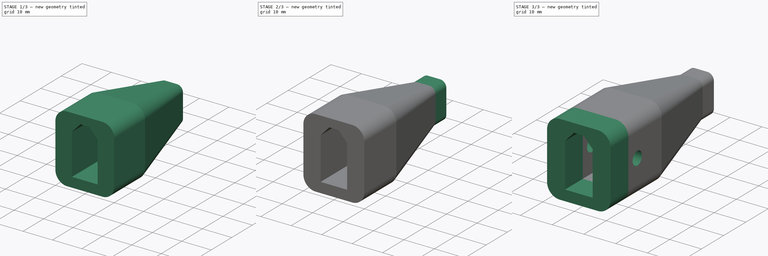
[diagram: build sequence overview — one tinted view per stage of 3, left to right]
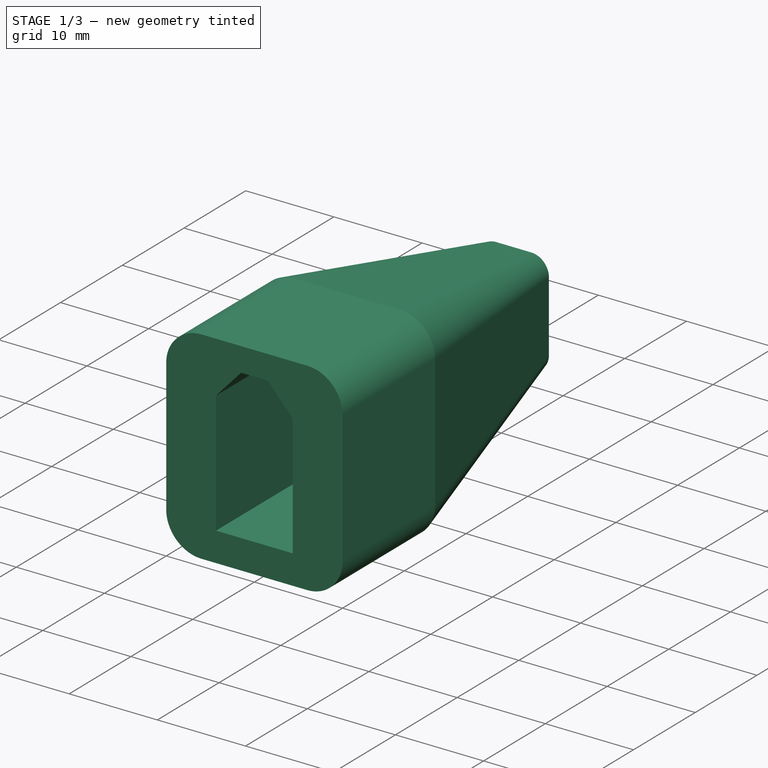
[diagram: stage 1 of 3 — iso view after this stage's code; geometry added in this stage tinted green]
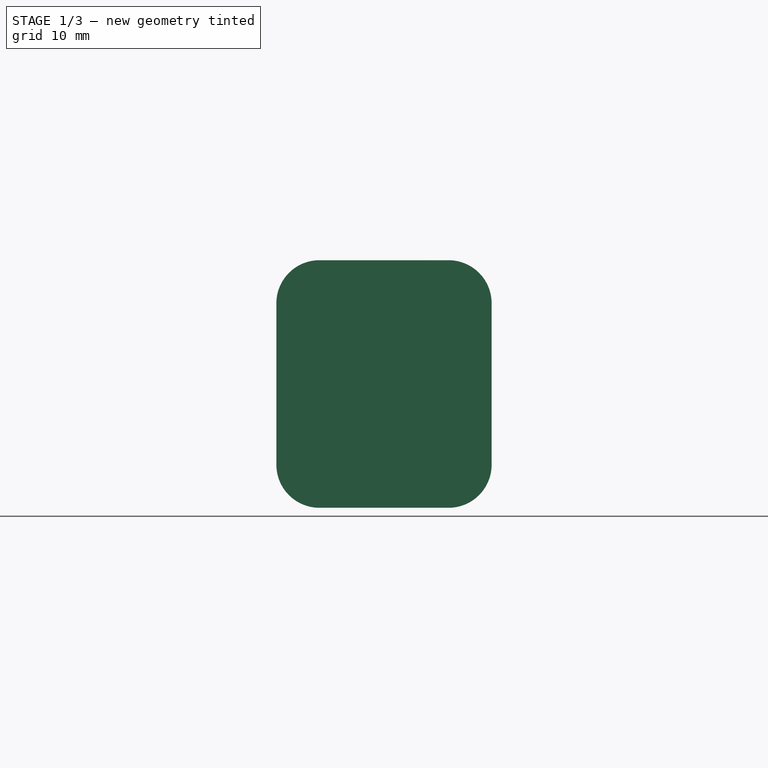
[diagram: stage 1 of 3 — front view after this stage's code; geometry added in this stage tinted green]
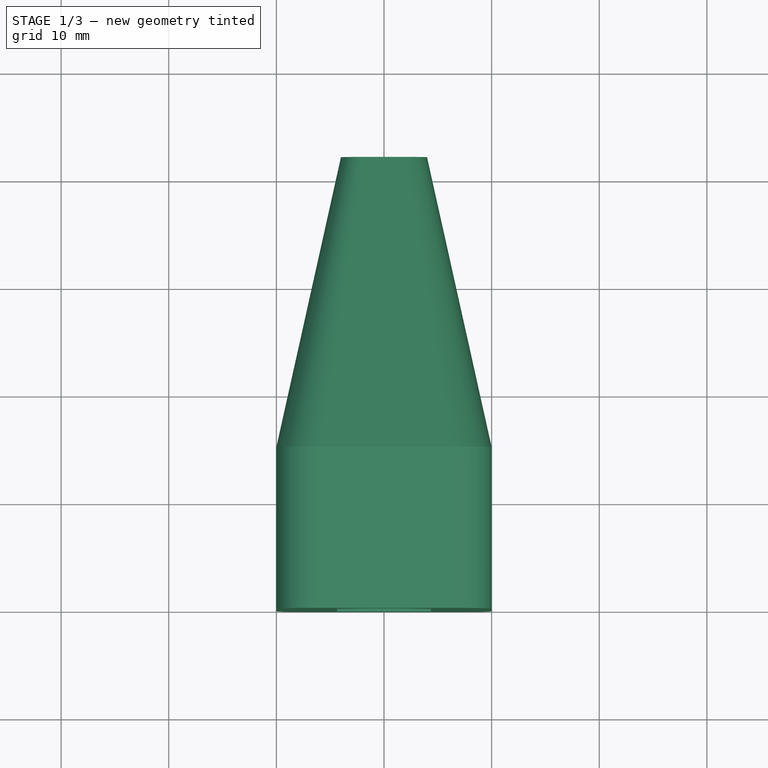
[diagram: stage 1 of 3 — top view after this stage's code; geometry added in this stage tinted green]
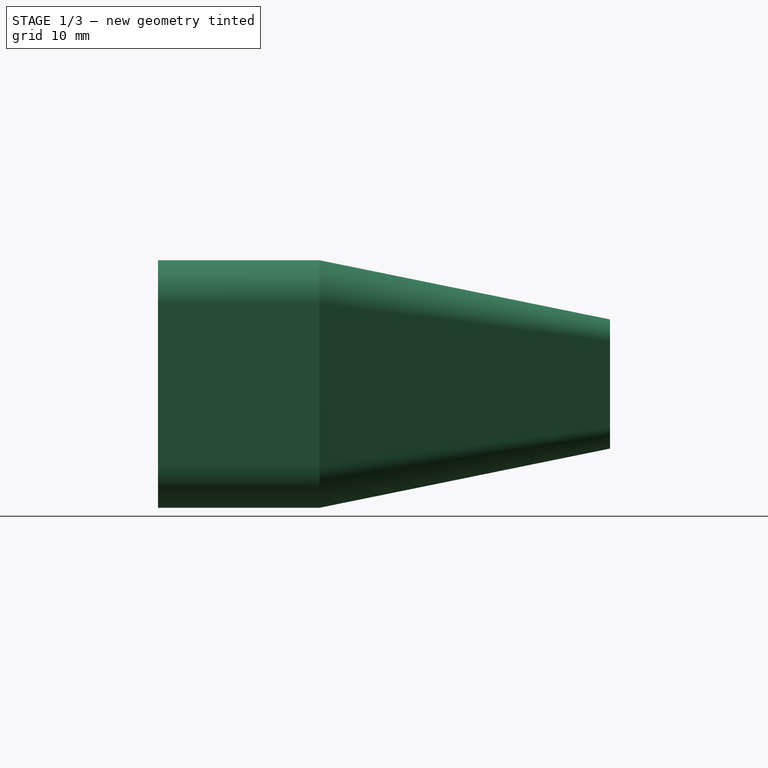
[diagram: stage 1 of 3 — right view after this stage's code; geometry added in this stage tinted green]
FCSTD DOCUMENT  (FreeCAD 0.20R29177 (Git))
Label: xt60covert008
License: All rights reserved
LicenseURL: http://en.wikipedia.org/wiki/All_rights_reserved
objects: Sketcher::SketchObject×8, PartDesign::Pad×4, Spreadsheet::Sheet×2, App::Link×2, PartDesign::Body×2, PartDesign::AdditiveLoft×1, PartDesign::Boolean×1, PartDesign::SubtractiveLoft×1, PartDesign::Pocket×1, App::TextDocument×1, App::Part×1
note: 25 computed .brp shape members not serialized (recipe doc carries the construction recipe); baked Part::Feature solids carry a one-line shape summary decoded from their .brp
EXTERNAL_REF file=../elementsCommun/xt_001.FCStd obj=Spreadsheet
EXTERNAL_REF file=xt60_insert_vis.FCStd obj=Part010
EXTERNAL_REF file=../elementsCommun/xt60Fem.FCStd obj=Part011

FEATURE [Spreadsheet::Sheet] Spreadsheet  label="coverSp"
  cells = A2=base; B2(base)=20; A3=haut; B3(haut)=23; A4=long; B4(long)=15; A5=centreY; B5(centreY)==(xtHaut + xtToitHaut) / 2; A6=coinRayon; B6(coinRayon)=4; A7=xtBase; B7(xtBase)==xt_001#<<xtSp>>.base + jeu; A8=xtHaut; B8(xtHaut)==xt_001#<<xtSp>>.haut; A9=xtToitHaut; B9(xtToitHaut)==xt_001#<<xtSp>>.toitHaut + jeu * 2; C9==B8 + B9; A10=xtFetLarg; B10(xtFetLarg)==xt_001#<<xtSp>>.fetierLarg; A11=jeu; B11(jeu)=0.3; A12=baseDistVert; B12(baseDistVert)==(haut - (xtHaut + xtToitHaut)) / 2; A13=trouFilPosY; B13(trouFilPosY)==haut / 2 - baseDistVert; A14=trousFilsEntraxe; B14(trousFilsEntraxe)=3.7; A15=trousFilsDiam; B15(trousFilsDiam)=4.2; A16=trousFilsDistBase; B16(trousFilsDistBase)=4.1; A17=extremiteLarg; B17(extremiteLarg)=8; A18=extremiteHaut; B18(extremiteHaut)=12; A19=extremiteRayon; B19(extremiteRayon)=2; A20=xtTrouDiam; B20(xtTrouDiam)=4.2; A21=xtTrouPosX; B21(xtTrouPosX)=4; A22=xtTrouPosY; B22(xtTrouPosY)==trouFilPosY; A23=buteeX; B23(buteeX)=7.8; C23=devient configurable male femelle; A24=buteeH; B24(buteeH)=1.5; A25=buteeEp; B25(buteeEp)=3
FEATURE [App::Link] Link  label="xtInsertVisLnk"
  LinkPlacement = pos=(13.9,300,-10.25) rot=(0,0,-1;1.5708rad)
  LinkedObject = -> <external xt60_insert_vis.FCStd>#Part010
  Placement = pos=(13.9,300,-10.25) rot=(0,0,-1;1.5708rad)
  expr: .Placement.Base.y = <<paramSp>>.malePosy
  expr: Visibility = <<paramSp>>.maleVisi
FEATURE [Sketcher::SketchObject] Sketch  label="formBaseSk"
  FullyConstrained = true
  MapMode = 5
  Placement = pos=(0,0,0) rot=(1,0,0;1.5708rad)
  Support = -> [XZ_Plane018]
  expr: Constraints[14] = <<coverSp>>.base
  expr: Constraints[15] = <<coverSp>>.coinRayon
  expr: Constraints[16] = <<coverSp>>.haut
  expr: Constraints[29] = <<paramSp>>.xtHaut
  expr: Constraints[30] = <<paramSp>>.xtBase
  expr: Constraints[31] = <<coverSp>>.xtToitHaut
  expr: Constraints[32] = xt_001#<<xtSp>>.fetierLarg
  expr: Constraints[33] = <<coverSp>>.baseDistVert
  sketch-geometry (18):
    g0: LineSegment StartX=-6 StartY=19.675 StartZ=0 EndX=6 EndY=19.675 EndZ=0
    g1: LineSegment StartX=10 StartY=15.675 StartZ=0 EndX=10 EndY=0.675 EndZ=0
    g2: LineSegment StartX=6 StartY=-3.325 StartZ=0 EndX=-6 EndY=-3.325 EndZ=0
    g3: LineSegment StartX=-10 StartY=0.675 StartZ=0 EndX=-10 EndY=15.675 EndZ=0
    g4: ArcOfCircle CenterX=-6 CenterY=15.675 CenterZ=0 NormalX=0 NormalY=0 NormalZ=1 AngleXU=0 Radius=4 StartAngle=1.5708 EndAngle=3.14159
    g5: ArcOfCircle CenterX=6 CenterY=15.675 CenterZ=0 NormalX=0 NormalY=0 NormalZ=1 AngleXU=0 Radius=4 StartAngle=0 EndAngle=1.5708
    g6: ArcOfCircle CenterX=-6 CenterY=0.675 CenterZ=0 NormalX=0 NormalY=0 NormalZ=1 AngleXU=0 Radius=4 StartAngle=3.14159 EndAngle=4.71239
    g7: ArcOfCircle CenterX=6 CenterY=0.675 CenterZ=0 NormalX=0 NormalY=0 NormalZ=1 AngleXU=0 Radius=4 StartAngle=4.71239 EndAngle=6.28319
    g8: LineSegment StartX=-4.35 StartY=0 StartZ=0 EndX=4.35 EndY=0 EndZ=0
    g9: LineSegment StartX=4.35 StartY=0 StartZ=0 EndX=4.35 EndY=13.85 EndZ=0
    g10: LineSegment StartX=4.35 StartY=13.85 StartZ=0 EndX=1.5 EndY=16.95 EndZ=0
    g11: LineSegment StartX=1.5 StartY=16.95 StartZ=0 EndX=-1.5 EndY=16.95 EndZ=0
    g12: LineSegment StartX=-1.5 StartY=16.95 StartZ=0 EndX=-4.35 EndY=13.85 EndZ=0
    g13: LineSegment StartX=-4.35 StartY=13.85 StartZ=0 EndX=-4.35 EndY=0 EndZ=0
    g14: LineSegment StartX=-6 StartY=15.675 StartZ=0 EndX=-6 EndY=0.675 EndZ=0
    g15: GeomPoint X=-6 Y=8.175 Z=0
    g16: LineSegment StartX=0 StartY=16.95 StartZ=0 EndX=0 EndY=0 EndZ=0
    g17: GeomPoint X=0 Y=8.475 Z=0
  constraints (43):
    c: Horizontal(g2)
    c: Vertical(g1)
    c: Tangent(g0,g4) = 1.5708
    c: Tangent(g3,g4) = 1.5708
    c: Tangent(g0,g5) = 1.5708
    c: Tangent(g1,g5) = 1.5708
    c: Tangent(g2,g6) = 1.5708
    c: Tangent(g3,g6) = 1.5708
    c: Tangent(g1,g7) = 1.5708
    c: Tangent(g2,g7) = 1.5708
    c: Symmetric(g0,g0,g-2)
    c: Symmetric(g1,g3,g-2)
    c: Equal(g7,g6)
    c: Equal(g5,g7)
    c: DistanceX(g3,g1) = 20
    c: Radius(g5) = 4
    c: DistanceY(g2,g0) = 23
    c: PointOnObject(g8,g-1)
    c: Horizontal(g8)
    c: Coincident(g8,g9)
    c: Vertical(g9)
    c: Coincident(g9,g10)
    c: Coincident(g10,g11)
    c: Coincident(g11,g12)
    c: Coincident(g12,g13)
    c: Coincident(g13,g8)
    c: Vertical(g13)
    c: Symmetric(g11,g10,g-2)
    c: Symmetric(g12,g9,g-2)
    c: DistanceY(g8,g9) = 13.85
    c: DistanceX(g8,g8) = 8.7
    c: DistanceY(g9,g10) = 3.1
    c: DistanceX(g11,g10) = 3
    c: DistanceY(g2,g-1) = 3.325
    c: Coincident(g14,g4)
    c: Coincident(g14,g6)
    c: Symmetric(g6,g4,g15)
    c: DistanceY(g-1,g15) = 8.175
    c: PointOnObject(g16,g11)
    c: Coincident(g16,g-1)
    c: Vertical(g16)
    c: Symmetric(g16,g16,g17)
    c: DistanceY(g16,g17) = 8.475
FEATURE [PartDesign::Pad] Pad  label="formeDeBase"
  Direction = (0,-1,-2e-16)
  Length = 15
  Length2 = 100
  Placement = pos=(0,0,0) rot=(1,0,0;1.5708rad)
  Profile = -> Sketch
  Reversed = true
  Type = 0
FEATURE [Sketcher::SketchObject] Sketch002  label="profileDeBaseSk"
  AttachmentOffset = pos=(0,0,-15) rot=(0,0,1;0rad)
  FullyConstrained = true
  MapMode = 5
  Placement = pos=(0,15,3.3e-15) rot=(1,0,0;1.5708rad)
  Support = -> [XZ_Plane019]
  expr: Constraints[15] = <<coverSp>>.coinRayon
  expr: Constraints[16] = <<coverSp>>.base
  expr: Constraints[17] = <<coverSp>>.haut
  expr: Constraints[18] = <<coverSp>>.baseDistVert
  sketch-geometry (8):
    g0: LineSegment StartX=-6 StartY=19.675 StartZ=0 EndX=6 EndY=19.675 EndZ=0
    g1: LineSegment StartX=10 StartY=15.675 StartZ=0 EndX=10 EndY=0.675 EndZ=0
    g2: LineSegment StartX=6 StartY=-3.325 StartZ=0 EndX=-6 EndY=-3.325 EndZ=0
    g3: LineSegment StartX=-10 StartY=0.675 StartZ=0 EndX=-10 EndY=15.675 EndZ=0
    g4: ArcOfCircle CenterX=-6 CenterY=15.675 CenterZ=0 NormalX=0 NormalY=0 NormalZ=1 AngleXU=0 Radius=4 StartAngle=1.5708 EndAngle=3.14159
    g5: ArcOfCircle CenterX=6 CenterY=15.675 CenterZ=0 NormalX=0 NormalY=0 NormalZ=1 AngleXU=0 Radius=4 StartAngle=-2.7e-15 EndAngle=1.5708
    g6: ArcOfCircle CenterX=6 CenterY=0.675 CenterZ=0 NormalX=0 NormalY=0 NormalZ=1 AngleXU=0 Radius=4 StartAngle=4.71239 EndAngle=6.28319
    g7: ArcOfCircle CenterX=-6 CenterY=0.675 CenterZ=0 NormalX=0 NormalY=0 NormalZ=1 AngleXU=0 Radius=4 StartAngle=3.14159 EndAngle=4.71239
  constraints (19):
    c: Horizontal(g2)
    c: Vertical(g1)
    c: Vertical(g3)
    c: Tangent(g0,g4) = 1.5708
    c: Tangent(g3,g4) = 1.5708
    c: Tangent(g0,g5) = 1.5708
    c: Tangent(g1,g5) = 1.5708
    c: Tangent(g1,g6) = 1.5708
    c: Tangent(g2,g6) = 1.5708
    c: Tangent(g2,g7) = 1.5708
    c: Tangent(g3,g7) = 1.5708
    c: Equal(g6,g5)
    c: Equal(g5,g4)
    c: Equal(g4,g7)
    c: Symmetric(g0,g0,g-2)
    c: Radius(g5) = 4
    c: DistanceX(g3,g1) = 20
    c: DistanceY(g2,g0) = 23
    c: DistanceY(g2,g-1) = 3.325
FEATURE [Sketcher::SketchObject] Sketch003  label="profileExtremiteSk"
  AttachmentOffset = pos=(0,0,-42) rot=(0,0,1;0rad)
  FullyConstrained = true
  MapMode = 5
  Placement = pos=(0,42,9.3e-15) rot=(1,0,0;1.5708rad)
  Support = -> [XZ_Plane019]
  expr: Constraints[14] = <<coverSp>>.extremiteRayon
  expr: Constraints[15] = <<coverSp>>.extremiteLarg
  expr: Constraints[16] = <<coverSp>>.extremiteHaut
  expr: Constraints[21] = <<coverSp>>.centreY
  sketch-geometry (10):
    g0: LineSegment StartX=-2 StartY=14.175 StartZ=0 EndX=2 EndY=14.175 EndZ=0
    g1: LineSegment StartX=4 StartY=12.175 StartZ=0 EndX=4 EndY=4.175 EndZ=0
    g2: LineSegment StartX=2 StartY=2.175 StartZ=0 EndX=-2 EndY=2.175 EndZ=0
    g3: LineSegment StartX=-4 StartY=4.175 StartZ=0 EndX=-4 EndY=12.175 EndZ=0
    g4: ArcOfCircle CenterX=-2 CenterY=12.175 CenterZ=0 NormalX=0 NormalY=0 NormalZ=1 AngleXU=0 Radius=2 StartAngle=1.5708 EndAngle=3.14159
    g5: ArcOfCircle CenterX=2 CenterY=12.175 CenterZ=0 NormalX=0 NormalY=0 NormalZ=1 AngleXU=0 Radius=2 StartAngle=0 EndAngle=1.5708
    g6: ArcOfCircle CenterX=2 CenterY=4.175 CenterZ=0 NormalX=0 NormalY=0 NormalZ=1 AngleXU=0 Radius=2 StartAngle=4.71239 EndAngle=6.28319
    g7: ArcOfCircle CenterX=-2 CenterY=4.175 CenterZ=0 NormalX=0 NormalY=0 NormalZ=1 AngleXU=0 Radius=2 StartAngle=3.14159 EndAngle=4.71239
    g8: LineSegment StartX=-2 StartY=12.175 StartZ=0 EndX=-2 EndY=4.175 EndZ=0
    g9: GeomPoint X=-2 Y=8.175 Z=0
  constraints (22):
    c: Horizontal(g0)
    c: Vertical(g1)
    c: Vertical(g3)
    c: Tangent(g0,g4) = 1.5708
    c: Tangent(g3,g4) = 1.5708
    c: Tangent(g0,g5) = 1.5708
    c: Tangent(g1,g5) = 1.5708
    c: Tangent(g1,g6) = 1.5708
    c: Tangent(g2,g6) = 1.5708
    c: Tangent(g2,g7) = 1.5708
    c: Tangent(g3,g7) = 1.5708
    c: Equal(g4,g5)
    c: Equal(g5,g6)
    c: Equal(g6,g7)
    c: Radius(g5) = 2
    c: DistanceX(g3,g1) = 8
    c: DistanceY(g2,g0) = 12
    c: Symmetric(g2,g2,g-2)
    c: Coincident(g8,g4)
    c: Coincident(g8,g7)
    c: Symmetric(g7,g4,g9)
    c: DistanceY(g-1,g9) = 8.175
FEATURE [PartDesign::AdditiveLoft] AdditiveLoft  label="manchonPlein"
  Closed = false
  Placement = pos=(0,0,0) rot=(1,0,0;1.5708rad)
  Profile = -> Sketch002
  Ruled = false
  Sections = -> [Sketch003]
FEATURE [PartDesign::Body] Body001
  Group = -> [Sketch002,Sketch003,AdditiveLoft]
  Origin = -> Origin023
  Tip = -> AdditiveLoft
FEATURE [PartDesign::Boolean] Boolean  label="corpsAvecManchonPlein"
  BaseFeature = -> Pad
  Group = -> [Body001]
  Type = 0
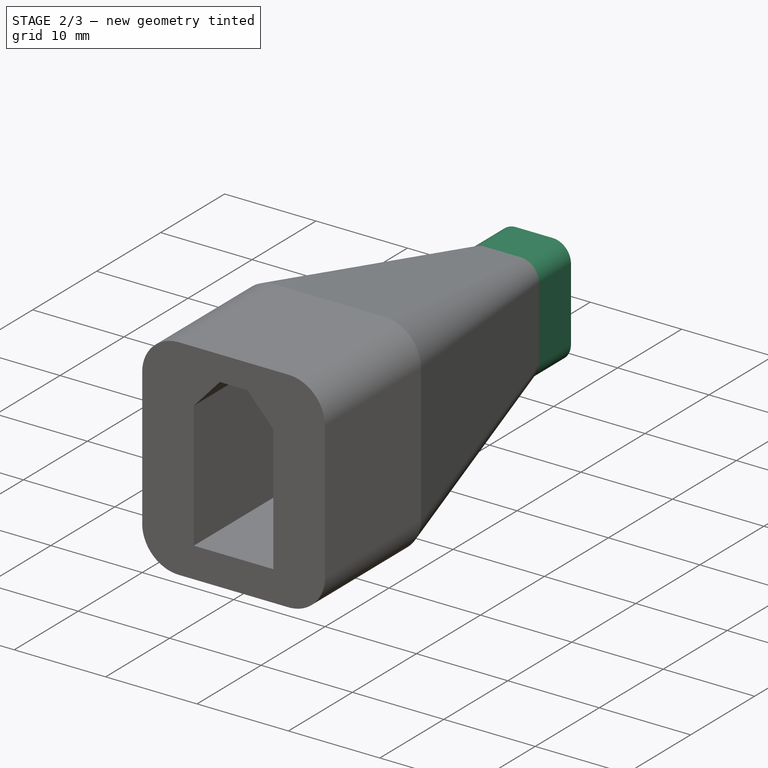
[diagram: stage 2 of 3 — iso view after this stage's code; geometry added in this stage tinted green]
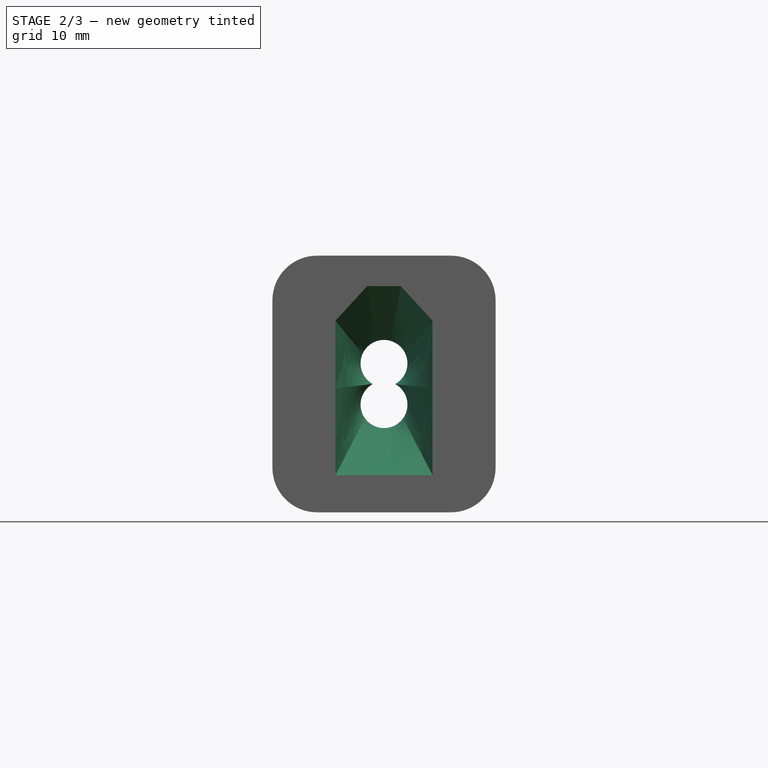
[diagram: stage 2 of 3 — front view after this stage's code; geometry added in this stage tinted green]
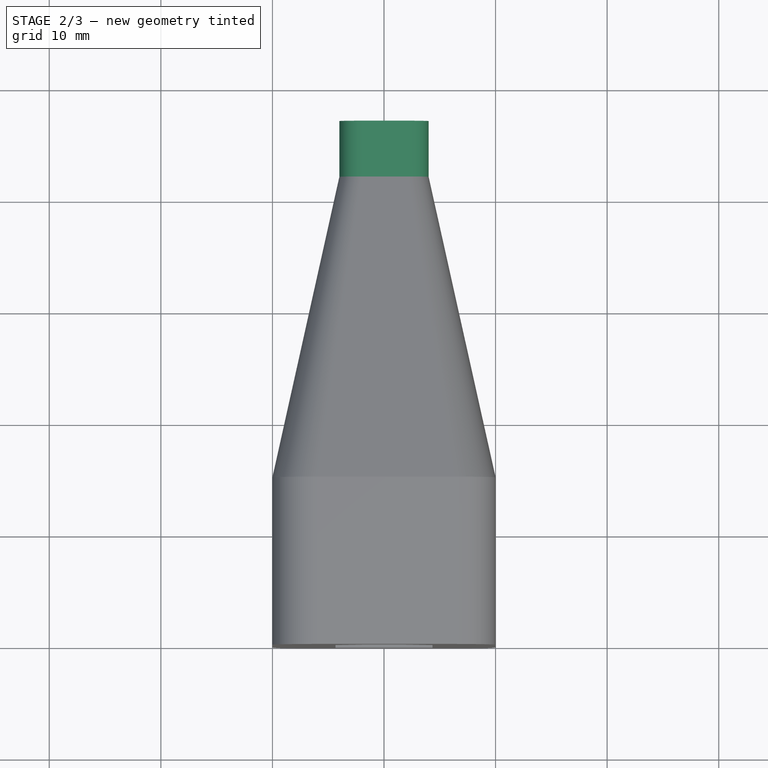
[diagram: stage 2 of 3 — top view after this stage's code; geometry added in this stage tinted green]
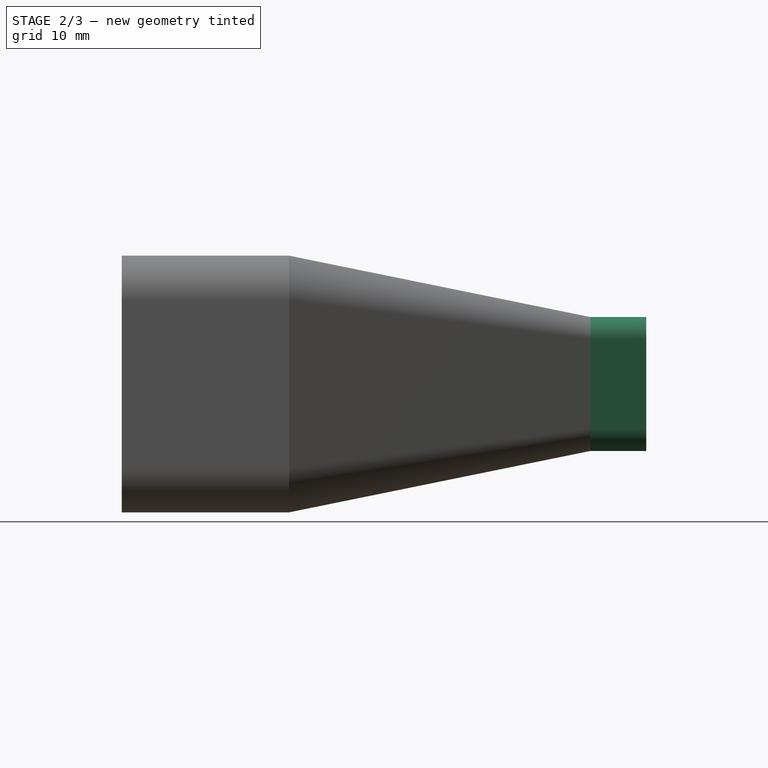
[diagram: stage 2 of 3 — right view after this stage's code; geometry added in this stage tinted green]
FEATURE [Sketcher::SketchObject] Sketch005
  ExternalGeometry = -> [Boolean]
  FullyConstrained = true
  MapMode = 5
  Placement = pos=(0,42,9.2e-15) rot=(0,0.707107,0.707107;3.14159rad)
  Support = -> [Boolean]
  expr: Constraints[18] = <<coverSp>>.trousFilsDiam
  expr: Constraints[24] = <<coverSp>>.trousFilsEntraxe
  expr: Constraints[25] = <<coverSp>>.trouFilPosY
  sketch-geometry (12):
    g0: LineSegment StartX=-2 StartY=14.175 StartZ=0 EndX=2 EndY=14.175 EndZ=0
    g1: LineSegment StartX=4 StartY=12.175 StartZ=0 EndX=4 EndY=4.175 EndZ=0
    g2: LineSegment StartX=2 StartY=2.175 StartZ=0 EndX=-2 EndY=2.175 EndZ=0
    g3: LineSegment StartX=-4 StartY=4.175 StartZ=0 EndX=-4 EndY=12.175 EndZ=0
    g4: ArcOfCircle CenterX=-2 CenterY=12.175 CenterZ=0 NormalX=0 NormalY=0 NormalZ=1 AngleXU=0 Radius=2 StartAngle=1.5708 EndAngle=3.14159
    g5: ArcOfCircle CenterX=2 CenterY=12.175 CenterZ=0 NormalX=0 NormalY=0 NormalZ=1 AngleXU=0 Radius=2 StartAngle=0 EndAngle=1.5708
    g6: ArcOfCircle CenterX=2 CenterY=4.175 CenterZ=0 NormalX=0 NormalY=0 NormalZ=1 AngleXU=0 Radius=2 StartAngle=4.71239 EndAngle=6.28319
    g7: ArcOfCircle CenterX=-2 CenterY=4.175 CenterZ=0 NormalX=0 NormalY=0 NormalZ=1 AngleXU=0 Radius=2 StartAngle=3.14159 EndAngle=4.71239
    g8: ArcOfCircle CenterX=0 CenterY=10.025 CenterZ=0 NormalX=0 NormalY=0 NormalZ=1 AngleXU=0 Radius=2.1 StartAngle=5.20531 EndAngle=10.5026
    g9: ArcOfCircle CenterX=0 CenterY=6.325 CenterZ=0 NormalX=0 NormalY=0 NormalZ=1 AngleXU=0 Radius=2.1 StartAngle=2.06372 EndAngle=7.36106
    g10: LineSegment StartX=0 StartY=6.325 StartZ=0 EndX=0 EndY=10.025 EndZ=0
    g11: GeomPoint X=0 Y=8.175 Z=0
  constraints (26):
    c: Horizontal(g0)
    c: Vertical(g3)
    c: Tangent(g0,g4) = 1.5708
    c: Tangent(g3,g4) = 1.5708
    c: Tangent(g0,g5) = 1.5708
    c: Tangent(g1,g5) = 1.5708
    c: Tangent(g1,g6) = 1.5708
    c: Tangent(g2,g6) = 1.5708
    c: Tangent(g2,g7) = 1.5708
    c: Tangent(g3,g7) = 1.5708
    c: Coincident(g0,g-4)
    c: Coincident(g3,g-10)
    c: Coincident(g1,g-7)
    c: Coincident(g2,g-8)
    c: Coincident(g1,g-6)
    c: PointOnObject(g8,g-2)
    c: PointOnObject(g9,g-2)
    c: Equal(g8,g9)
    c: Diameter(g8) = 4.2
    c: Coincident(g8,g9)
    c: Coincident(g8,g9)
    c: Coincident(g10,g9)
    c: Coincident(g10,g8)
    c: Symmetric(g9,g8,g11)
    c: DistanceY(g9,g8) = 3.7
    c: DistanceY(g-1,g11) = 8.175
FEATURE [Sketcher::SketchObject] Sketch006
  ExternalGeometry = -> [Boolean]
  FullyConstrained = true
  MapMode = 5
  Placement = pos=(0,15,6e-15) rot=(1,0,0;1.5708rad)
  Support = -> [Boolean]
  sketch-geometry (6):
    g0: LineSegment StartX=-1.5 StartY=16.95 StartZ=0 EndX=-4.35 EndY=13.85 EndZ=0
    g1: LineSegment StartX=-4.35 StartY=13.85 StartZ=0 EndX=-4.35 EndY=0 EndZ=0
    g2: LineSegment StartX=-4.35 StartY=0 StartZ=0 EndX=4.35 EndY=0 EndZ=0
    g3: LineSegment StartX=4.35 StartY=0 StartZ=0 EndX=4.35 EndY=13.85 EndZ=0
    g4: LineSegment StartX=4.35 StartY=13.85 StartZ=0 EndX=1.5 EndY=16.95 EndZ=0
    g5: LineSegment StartX=1.5 StartY=16.95 StartZ=0 EndX=-1.5 EndY=16.95 EndZ=0
  constraints (13):
    c: Coincident(g0,g1)
    c: Vertical(g1)
    c: Coincident(g1,g2)
    c: Horizontal(g2)
    c: Coincident(g2,g3)
    c: Coincident(g3,g4)
    c: Coincident(g4,g5)
    c: Coincident(g5,g0)
    c: Coincident(g0,g-8)
    c: Coincident(g0,g-4)
    c: Coincident(g4,g-5)
    c: Coincident(g3,g-6)
    c: Coincident(g2,g-7)
FEATURE [PartDesign::SubtractiveLoft] SubtractiveLoft
  BaseFeature = -> Boolean
  Closed = false
  Profile = -> Sketch006
  Ruled = false
  Sections = -> [Sketch005]
FEATURE [PartDesign::Pad] Pad001  label="extremite"
  BaseFeature = -> SubtractiveLoft
  Direction = (0,1,2e-16)
  Length = 5
  Length2 = 10
  Profile = -> SubtractiveLoft [Face19]
  Type = 0
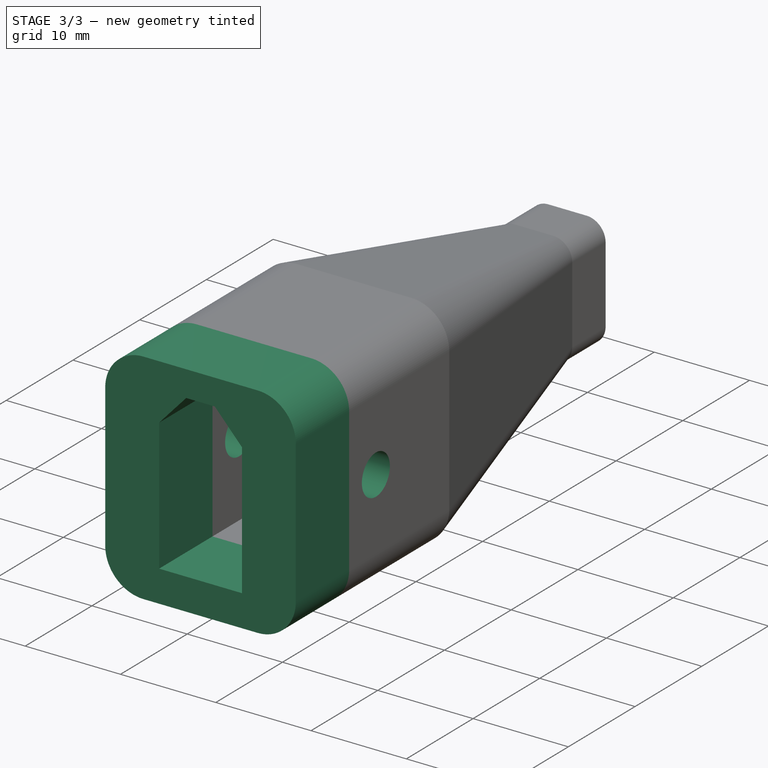
[diagram: stage 3 of 3 — iso view after this stage's code; geometry added in this stage tinted green]
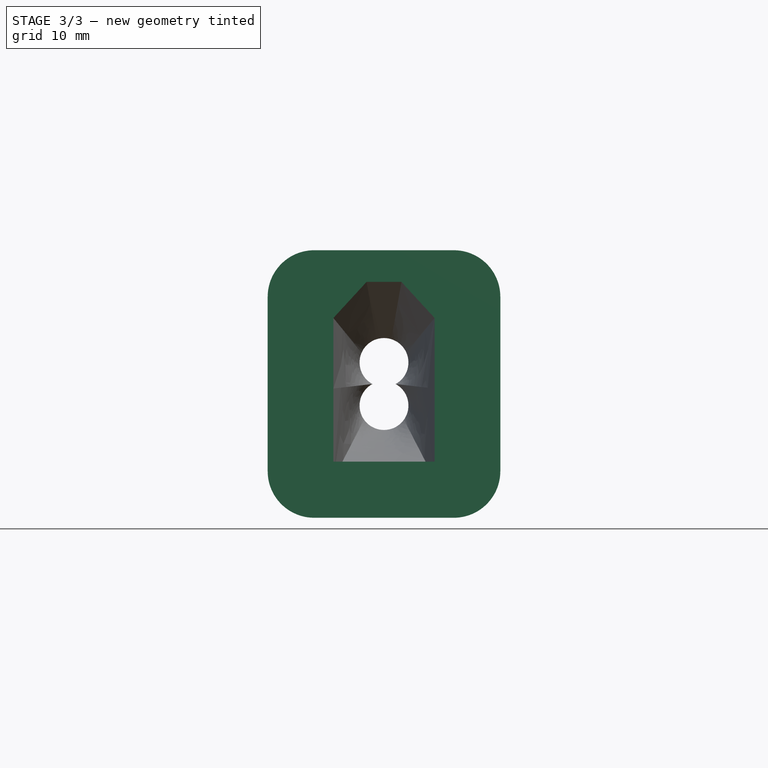
[diagram: stage 3 of 3 — front view after this stage's code; geometry added in this stage tinted green]
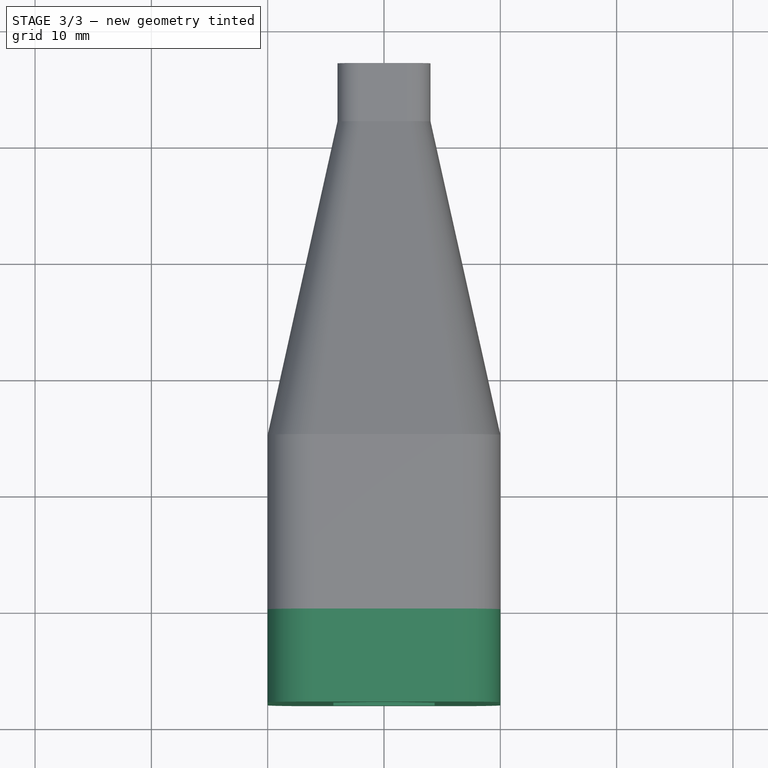
[diagram: stage 3 of 3 — top view after this stage's code; geometry added in this stage tinted green]
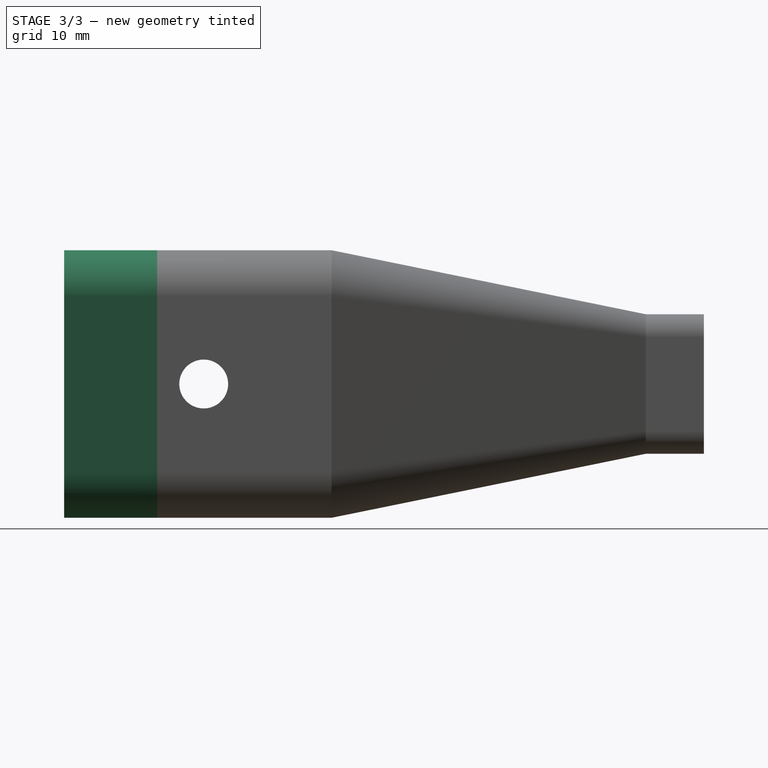
[diagram: stage 3 of 3 — right view after this stage's code; geometry added in this stage tinted green]
FEATURE [Sketcher::SketchObject] Sketch007
  FullyConstrained = true
  MapMode = 5
  Placement = pos=(0,0,0) rot=(0.57735,0.57735,0.57735;2.0944rad)
  Support = -> [YZ_Plane018]
  expr: Constraints[0] = <<coverSp>>.xtTrouDiam
  expr: Constraints[1] = <<coverSp>>.xtTrouPosX
  expr: Constraints[2] = Spreadsheet.xtTrouPosY
  sketch-geometry (1):
    g0: Circle CenterX=4 CenterY=8.175 CenterZ=0 NormalX=0 NormalY=0 NormalZ=1 AngleXU=0 Radius=2.1
  constraints (3):
    c: Diameter(g0) = 4.2
    c: DistanceX(g-1,g0) = 4
    c: DistanceY(g-1,g0) = 8.175
FEATURE [PartDesign::Pocket] Pocket  label="trouInsert"
  BaseFeature = -> Pad001
  Direction = (-1,2e-16,-3e-16)
  Length = 20
  Length2 = 5
  Midplane = true
  Profile = -> Sketch007
  ReferenceAxis = -> Sketch007 [N_Axis]
  Type = 0
  expr: Length = <<coverSp>>.base
FEATURE [App::Link] Link001  label="xt60FemLnk"
  LinkPlacement = pos=(-13.9,26.6,-10.1) rot=(0,0,1;1.5708rad)
  LinkedObject = -> <external ../elementsCommun/xt60Fem.FCStd>#Part011
  Placement = pos=(-13.9,26.6,-10.1) rot=(0,0,1;1.5708rad)
  expr: .Placement.Base.y = <<paramSp>>.femPosY
  expr: Visibility = <<paramSp>>.femVis
FEATURE [Spreadsheet::Sheet] Spreadsheet001  label="paramSp"
  cells = B4=extensionFem; C4=malePosy; D4=femPosY; E4=femVis; F4=maleVisi; G4=xtBase; H4=xtHaut; I4=buteeX; A5==hiddenref(Part.config.String); B5(extensionFem)==.B7; C5(malePosy)==.C7; D5(femPosY)==.D7; E5(femVis)==.E7; F5(maleVisi)==.F7; G5(xtBase)==.G7; H5(xtHaut)==.H7; I5(buteeX)==.I7; A6=male; B6=0.1; C6=0; D6=300; E6=0; F6=1; G6=8.6; H6==16.85 - 3.1; I6=7.8; A7=femelle; B7=8; C7=300; D7=26.6; E7=1; F7=0; G7=8.699999999999999; H7==16.95 - 3.1; I7=8.550000000000001
  expr: .cells.Bind.B5.ZZ5 = tuple(.cells; <<B>> + str(hiddenref(Part.config) + 6); <<ZZ>> + str(hiddenref(Part.config) + 6))
FEATURE [Sketcher::SketchObject] Sketch008
  ExternalGeometry = -> [Sketch]
  FullyConstrained = true
  MapMode = 5
  Placement = pos=(0,0,0) rot=(1,0,0;1.5708rad)
  Support = -> [XZ_Plane018]
  sketch-geometry (14):
    g0: ArcOfCircle CenterX=-6 CenterY=15.675 CenterZ=0 NormalX=0 NormalY=0 NormalZ=1 AngleXU=0 Radius=4 StartAngle=1.5708 EndAngle=3.14159
    g1: ArcOfCircle CenterX=6 CenterY=0.675 CenterZ=0 NormalX=0 NormalY=0 NormalZ=1 AngleXU=0 Radius=4 StartAngle=4.71239 EndAngle=6.28319
    g2: ArcOfCircle CenterX=6 CenterY=15.675 CenterZ=0 NormalX=0 NormalY=0 NormalZ=1 AngleXU=0 Radius=4 StartAngle=0 EndAngle=1.5708
    g3: ArcOfCircle CenterX=-6 CenterY=0.675 CenterZ=0 NormalX=0 NormalY=0 NormalZ=1 AngleXU=0 Radius=4 StartAngle=3.14159 EndAngle=4.71239
    g4: LineSegment StartX=-10 StartY=15.675 StartZ=0 EndX=-10 EndY=0.675 EndZ=0
    g5: LineSegment StartX=-6.00002 StartY=19.675 StartZ=0 EndX=6 EndY=19.675 EndZ=0
    g6: LineSegment StartX=10 StartY=15.675 StartZ=0 EndX=10 EndY=0.675 EndZ=0
    g7: LineSegment StartX=-6 StartY=-3.325 StartZ=0 EndX=6 EndY=-3.325 EndZ=0
    g8: LineSegment StartX=-4.35 StartY=0 StartZ=0 EndX=-4.35 EndY=13.85 EndZ=0
    g9: LineSegment StartX=-4.35 StartY=13.85 StartZ=0 EndX=-1.5 EndY=16.95 EndZ=0
    g10: LineSegment StartX=-1.5 StartY=16.95 StartZ=0 EndX=1.5 EndY=16.95 EndZ=0
    g11: LineSegment StartX=1.5 StartY=16.95 StartZ=0 EndX=4.35 EndY=13.85 EndZ=0
    g12: LineSegment StartX=4.35 StartY=13.85 StartZ=0 EndX=4.35 EndY=0 EndZ=0
    g13: LineSegment StartX=4.35 StartY=0 StartZ=0 EndX=-4.35 EndY=0 EndZ=0
  constraints (30):
    c: Coincident(g0,g-3)
    c: Coincident(g0,g-3)
    c: Coincident(g1,g-4)
    c: Coincident(g1,g-4)
    c: Coincident(g3,g-6)
    c: Coincident(g3,g-6)
    c: Coincident(g4,g0)
    c: Coincident(g4,g3)
    c: Vertical(g4)
    c: Coincident(g5,g0)
    c: Coincident(g7,g3)
    c: Coincident(g7,g1)
    c: Vertical(g6)
    c: Horizontal(g5)
    c: Tangent(g6,g1) = 1.5708
    c: Coincident(g2,g-5)
    c: Tangent(g6,g2) = 1.5708
    c: Tangent(g5,g2) = 1.5708
    c: Coincident(g-7,g8)
    c: Coincident(g8,g-8)
    c: Coincident(g8,g9)
    c: Coincident(g9,g-9)
    c: Coincident(g9,g10)
    c: Coincident(g10,g-10)
    c: Coincident(g10,g11)
    c: Coincident(g11,g-11)
    c: Coincident(g11,g12)
    c: Coincident(g12,g-11)
    c: Coincident(g12,g13)
    c: Coincident(g13,g8)
FEATURE [PartDesign::Pad] Pad002  label="extensionFem"
  BaseFeature = -> Pocket
  Direction = (0,-1,-2e-16)
  Length = 8
  Length2 = 10
  Profile = -> Sketch008
  ReferenceAxis = -> Sketch008 [N_Axis]
  Type = 0
  expr: Length = <<paramSp>>.extensionFem
FEATURE [Sketcher::SketchObject] Sketch009
  FullyConstrained = true
  MapMode = 5
  Placement = pos=(0,0,0) rot=(0.57735,0.57735,0.57735;2.0944rad)
  Support = -> [YZ_Plane018]
  expr: Constraints[6] = <<paramSp>>.buteeX
  expr: Constraints[7] = <<coverSp>>.buteeEp
  expr: Constraints[8] = <<coverSp>>.buteeH
  sketch-geometry (3):
    g0: LineSegment StartX=8.55 StartY=0 StartZ=0 EndX=8.55 EndY=1.5 EndZ=0
    g1: LineSegment StartX=8.55 StartY=1.5 StartZ=0 EndX=11.55 EndY=0 EndZ=0
    g2: LineSegment StartX=11.55 StartY=0 StartZ=0 EndX=8.55 EndY=0 EndZ=0
  constraints (9):
    c: PointOnObject(g0,g-1)
    c: Vertical(g0)
    c: Coincident(g0,g1)
    c: PointOnObject(g1,g-1)
    c: Coincident(g1,g2)
    c: Coincident(g2,g0)
    c: DistanceX(g-1,g0) = 8.55
    c: DistanceX(g0,g1) = 3
    c: DistanceY(g0,g0) = 1.5
FEATURE [PartDesign::Pad] Pad003  label="butee"
  BaseFeature = -> Pad002
  Direction = (1,-2e-16,3e-16)
  Length = 8.7
  Length2 = 10
  Midplane = true
  Profile = -> Sketch009
  ReferenceAxis = -> Sketch009 [N_Axis]
  Type = 0
  expr: Length = <<paramSp>>.xtBase
FEATURE [PartDesign::Body] Body  label="covertBdy"
  Group = -> [Sketch,Pad,Boolean,Sketch005,Sketch006,SubtractiveLoft,Pad001,Sketch007,Pocket,Sketch008,Pad002,Sketch009,Pad003]
  Origin = -> Origin022
  Tip = -> Pad003
FEATURE [App::TextDocument] Text_document001  label="pbDimNotes"
  Text = Problème de dimensions\n======================\nSur la v005\n-------------------------------------------------------------\nbase      : Mesure : 8.2     saisie :   8.6  delta : 0.4\nhauteur  : Mesure :  15.8  saisie : 16.35 delta : 0.55\n\n"Officiellement" 8.10x15.5\n\nMesures sur plusieurs prises\n\nFemelles\nbases : 8.05 - 7.8 -  7.83 - 7.82\nhaut   : 15.98 - 15.78 - 15.77 - 15.83\n\nMales\nbases : 7.73 - 7.81 - 7.78 - 7.81\nhaut :   15.94 - 15.64 - 15.76 - 15.74
FEATURE [App::Part] Part  label="covert"
  Group = -> [Body,Spreadsheet,Spreadsheet001,Text_document001]
  Origin = -> Origin
  config = 1
  expr: .config.Enum = Spreadsheet001.cells[<<A6:|>>]

RESOLVED EXTERNAL PARTS (link-assembly join: the EXTERNAL_REF files above that resolve inside this repo's crawl, each included once):
---- part ../elementsCommun/xt60Fem.FCStd = doc fcstd_019061a1bfe1 ----
FCSTD DOCUMENT  (FreeCAD 0.20R29177 (Git))
Label: xt60Fem
License: All rights reserved
LicenseURL: http://en.wikipedia.org/wiki/All_rights_reserved
objects: App::Part×4, Part::Feature×2, Sketcher::SketchObject×2, PartDesign::Chamfer×2, PartDesign::Pad×1, PartDesign::Pocket×1, PartDesign::Body×1
note: 13 computed .brp shape members not serialized (recipe doc carries the construction recipe); baked Part::Feature solids carry a one-line shape summary decoded from their .brp

FEATURE [Part::Feature] Part__Feature  label="XT60FemaleConnector"
  shape: bbox 20.5 x 7.501 x 16.55 mm, 417 faces, 3 solids (baked)
FEATURE [App::Part] Part001  label="xt60fem"
  Group = -> [Part__Feature]
  Origin = -> Origin004
  Placement = pos=(-26.5,-14,16.7) rot=(1,0,0;3.14159rad)
FEATURE [Part::Feature] Solid003  label="RUTHEX_M3x5_008"
  Placement = pos=(-11,0,0) rot=(0,0,1;0rad)
  shape: bbox 4.583 x 5.705 x 4.583 mm, 200 faces (baked)
FEATURE [App::Part] Part004  label="ZSB_RUTHEX_M3_5.7_002"
  Group = -> [Solid003]
  Origin = -> Origin007
  Placement = pos=(-34,3.7e-15,16.6) rot=(0,0,1;3.14159rad)
FEATURE [Sketcher::SketchObject] Sketch027
  FullyConstrained = false
  MapMode = 5
  Support = -> [XY_Plane010]
  sketch-geometry (7):
    g0: LineSegment StartX=0.433013 StartY=-0.75 StartZ=0 EndX=0.866025 EndY=1.25568e-11 EndZ=0
    g1: LineSegment StartX=0.866025 StartY=1.25568e-11 StartZ=0 EndX=0.433013 EndY=0.75 EndZ=0
    g2: LineSegment StartX=0.433013 StartY=0.75 StartZ=0 EndX=-0.433013 EndY=0.75 EndZ=0
    g3: LineSegment StartX=-0.433013 StartY=0.75 StartZ=0 EndX=-0.866025 EndY=2.91366e-11 EndZ=0
    g4: LineSegment StartX=-0.866025 StartY=2.91366e-11 StartZ=0 EndX=-0.433013 EndY=-0.75 EndZ=0
    g5: LineSegment StartX=-0.433013 StartY=-0.75 StartZ=0 EndX=0.433013 EndY=-0.75 EndZ=0
    g6: Circle CenterX=0 CenterY=0 CenterZ=0 NormalX=0 NormalY=0 NormalZ=1 AngleXU=0 Radius=0.866025
  constraints (16):
    c: Coincident(g0,g1)
    c: Coincident(g1,g2)
    c: Coincident(g2,g3)
    c: Coincident(g3,g4)
    c: Coincident(g4,g5)
    c: Coincident(g5,g0)
    c: Equal(g0, g1-g5) x5
    c: PointOnObject(g0,g6)
    c: PointOnObject(g1,g6)
    c: PointOnObject(g2,g6)
    c: PointOnObject(g3,g6)
    c: PointOnObject(g4,g6)
    c: PointOnObject(g5,g6)
    c: Coincident(g6,g-1)
    c: Horizontal(g2)
    c: DistanceY(g0,g1) = 1.5
FEATURE [Sketcher::SketchObject] Sketch028
  FullyConstrained = false
  MapMode = 5
  Support = -> [XY_Plane010]
  sketch-geometry (1):
    g0: Circle CenterX=0 CenterY=0 CenterZ=0 NormalX=0 NormalY=0 NormalZ=1 AngleXU=0 Radius=1.5
  constraints (2):
    c: Coincident(g0,g-1)
    c: Diameter(g0) = 3
FEATURE [PartDesign::Pad] Pad013
  AllowMultiFace = false
  Direction = (1,1,1)
  Length = 10
  Length2 = 100
  Profile = -> Sketch028
  Type = 0
FEATURE [PartDesign::Chamfer] Chamfer003
  Angle = 45
  Base = -> Pad013 [Edge3]
  BaseFeature = -> Pad013
  ChamferType = 0
  FlipDirection = false
  Size = 1.4
  Size2 = 1
  SupportTransform = false
  UseAllEdges = false
FEATURE [PartDesign::Pocket] Pocket014
  AllowMultiFace = false
  BaseFeature = -> Chamfer003
  Direction = (1,1,1)
  Length = 1.5
  Length2 = 100
  Profile = -> Sketch027
  Reversed = true
  Type = 0
FEATURE [PartDesign::Chamfer] Chamfer002
  Angle = 45
  Base = -> Pocket014 [Edge3]
  BaseFeature = -> Pocket014
  ChamferType = 0
  FlipDirection = false
  Size = 0.1
  Size2 = 1
  SupportTransform = false
  UseAllEdges = false
FEATURE [PartDesign::Body] Body006  label="bodyVisPointeauM3x10_002"
  Group = -> [Sketch028,Pad013,Chamfer003,Sketch027,Pocket014,Chamfer002]
  Origin = -> Origin015
  Tip = -> Chamfer002
FEATURE [App::Part] Part008  label="partVisPointeauM3x10_002"
  Group = -> [Body006]
  Origin = -> Origin014
  Placement = pos=(-23.1,-0.5,16.6) rot=(1,0,0;1.5708rad)
FEATURE [App::Part] Part011  label="xtVisInertMob"
  Group = -> [Part001,Part004,Part008]
  Origin = -> Origin022
---- part ../elementsCommun/xt_001.FCStd = doc fcstd_f280d5d832ee ----
FCSTD DOCUMENT  (FreeCAD 0.20R29177 (Git))
Label: xt_001
License: Public Domain
LicenseURL: http://en.wikipedia.org/wiki/Public_domain
objects: Part::Feature×3, Spreadsheet::Sheet×1, Part::Compound2×1, Sketcher::SketchObject×1, PartDesign::Body×1, App::Part×1
note: 5 computed .brp shape members not serialized (recipe doc carries the construction recipe); baked Part::Feature solids carry a one-line shape summary decoded from their .brp

FEATURE [Spreadsheet::Sheet] Spreadsheet  label="xtSp"
  cells = A2=base; B2(base)=8.300000000000001; A3=haut; B3(haut)=13.25; A4=toitHaut; B4(toitHaut)=2.5; A5=fetierLarg; B5(fetierLarg)=3
FEATURE [Part::Feature] Solid
  shape: bbox 19.85 x 5.084 x 5.084 mm, 17 faces (baked)
FEATURE [Part::Feature] Solid001
  shape: bbox 19.85 x 5.084 x 5.084 mm, 17 faces (baked)
FEATURE [Part::Feature] Solid002
  shape: bbox 15.7 x 7.5 x 16.55 mm, 359 faces (baked)
FEATURE [Part::Compound2] Compound  label="XT60MaleConnector"
  Links = -> [Solid,Solid001,Solid002]
  Placement = pos=(6.2e-15,-8,6.5) rot=(-0.707107,-0.707107,0;3.14159rad)
FEATURE [Sketcher::SketchObject] Sketch
  FullyConstrained = true
  MapMode = 5
  Placement = pos=(0,0,0) rot=(1,0,0;1.5708rad)
  Support = -> [XZ_Plane001]
  expr: Constraints[13] = <<xtSp>>.base
  expr: Constraints[14] = <<xtSp>>.haut
  expr: Constraints[16] = <<xtSp>>.fetierLarg
  expr: Constraints[17] = <<xtSp>>.toitHaut
  sketch-geometry (7):
    g0: LineSegment StartX=-4.15 StartY=0 StartZ=0 EndX=-4.15 EndY=13.25 EndZ=0
    g1: LineSegment StartX=-4.15 StartY=13.25 StartZ=0 EndX=-1.5 EndY=15.75 EndZ=0
    g2: LineSegment StartX=-1.5 StartY=15.75 StartZ=0 EndX=1.5 EndY=15.75 EndZ=0
    g3: LineSegment StartX=1.5 StartY=15.75 StartZ=0 EndX=4.15 EndY=13.25 EndZ=0
    g4: LineSegment StartX=4.15 StartY=13.25 StartZ=0 EndX=4.15 EndY=0 EndZ=0
    g5: LineSegment StartX=4.15 StartY=0 StartZ=0 EndX=-4.15 EndY=0 EndZ=0
    g6: LineSegment StartX=-4.15 StartY=13.25 StartZ=0 EndX=4.15 EndY=13.25 EndZ=0
  constraints (18):
    c: PointOnObject(g0,g-1)
    c: Vertical(g0)
    c: Coincident(g0,g1)
    c: Coincident(g1,g2)
    c: Coincident(g2,g3)
    c: Coincident(g3,g4)
    c: Vertical(g4)
    c: Coincident(g4,g5)
    c: Coincident(g5,g0)
    c: Symmetric(g0,g4,g-2)
    c: Coincident(g6,g0)
    c: Coincident(g6,g3)
    c: Horizontal(g6)
    c: DistanceX(g5,g5) = 8.3
    c: DistanceY(g4,g4) = 13.25
    c: Symmetric(g1,g2,g-2)
    c: DistanceX(g2,g2) = 3
    c: DistanceY(g0,g1) = 2.5
FEATURE [PartDesign::Body] Body
  Group = -> [Sketch]
  Origin = -> Origin001
FEATURE [App::Part] Part  label="xt"
  Group = -> [Spreadsheet,Body,Solid002,Solid,Solid001,Compound]
  Origin = -> Origin
---- part xt60_insert_vis.FCStd = doc fcstd_384c2fa57937 ----
FCSTD DOCUMENT  (FreeCAD 0.20R29177 (Git))
Label: xt60_insert_vis
License: All rights reserved
LicenseURL: http://en.wikipedia.org/wiki/All_rights_reserved
objects: App::Part×3, Sketcher::SketchObject×2, PartDesign::Chamfer×2, Part::Feature×1, PartDesign::Pad×1, PartDesign::Pocket×1, PartDesign::Body×1, App::Link×1
note: 12 computed .brp shape members not serialized (recipe doc carries the construction recipe); baked Part::Feature solids carry a one-line shape summary decoded from their .brp
EXTERNAL_REF file=../elementsCommun/xt_001.FCStd obj=Part

FEATURE [Part::Feature] Solid002  label="RUTHEX_M3x5_7"
  Placement = pos=(-11.5,0,-0.2) rot=(0,0,1;0rad)
  shape: bbox 4.583 x 5.705 x 4.583 mm, 200 faces (baked)
FEATURE [App::Part] Part003  label="ZSB_RUTHEX_M3_5.7_001"
  Group = -> [Solid002]
  Origin = -> Origin006
  Placement = pos=(-15.5,-3.9,18.8) rot=(0,0,1;3.14159rad)
FEATURE [Sketcher::SketchObject] Sketch025
  FullyConstrained = false
  MapMode = 5
  Support = -> [XY_Plane008]
  sketch-geometry (1):
    g0: Circle CenterX=0 CenterY=0 CenterZ=0 NormalX=0 NormalY=0 NormalZ=1 AngleXU=0 Radius=1.5
  constraints (2):
    c: Coincident(g0,g-1)
    c: Diameter(g0) = 3
FEATURE [Sketcher::SketchObject] Sketch026
  FullyConstrained = false
  MapMode = 5
  Support = -> [XY_Plane008]
  sketch-geometry (7):
    g0: LineSegment StartX=0.433013 StartY=-0.75 StartZ=0 EndX=0.866025 EndY=1.25568e-11 EndZ=0
    g1: LineSegment StartX=0.866025 StartY=1.25568e-11 StartZ=0 EndX=0.433013 EndY=0.75 EndZ=0
    g2: LineSegment StartX=0.433013 StartY=0.75 StartZ=0 EndX=-0.433013 EndY=0.75 EndZ=0
    g3: LineSegment StartX=-0.433013 StartY=0.75 StartZ=0 EndX=-0.866025 EndY=2.91366e-11 EndZ=0
    g4: LineSegment StartX=-0.866025 StartY=2.91366e-11 StartZ=0 EndX=-0.433013 EndY=-0.75 EndZ=0
    g5: LineSegment StartX=-0.433013 StartY=-0.75 StartZ=0 EndX=0.433013 EndY=-0.75 EndZ=0
    g6: Circle CenterX=0 CenterY=0 CenterZ=0 NormalX=0 NormalY=0 NormalZ=1 AngleXU=0 Radius=0.866025
  constraints (16):
    c: Coincident(g0,g1)
    c: Coincident(g1,g2)
    c: Coincident(g2,g3)
    c: Coincident(g3,g4)
    c: Coincident(g4,g5)
    c: Coincident(g5,g0)
    c: Equal(g0, g1-g5) x5
    c: PointOnObject(g0,g6)
    c: PointOnObject(g1,g6)
    c: PointOnObject(g2,g6)
    c: PointOnObject(g3,g6)
    c: PointOnObject(g4,g6)
    c: PointOnObject(g5,g6)
    c: Coincident(g6,g-1)
    c: Horizontal(g2)
    c: DistanceY(g0,g1) = 1.5
FEATURE [PartDesign::Pad] Pad012
  AllowMultiFace = false
  Direction = (1,1,1)
  Length = 6
  Length2 = 100
  Profile = -> Sketch025
  Type = 0
FEATURE [PartDesign::Chamfer] Chamfer
  Angle = 45
  Base = -> Pad012 [Edge3]
  BaseFeature = -> Pad012
  ChamferType = 0
  FlipDirection = false
  Size = 1.4
  Size2 = 1
  SupportTransform = false
  UseAllEdges = false
FEATURE [PartDesign::Pocket] Pocket013
  AllowMultiFace = false
  BaseFeature = -> Chamfer
  Direction = (1,1,1)
  Length = 1.5
  Length2 = 100
  Profile = -> Sketch026
  Reversed = true
  Type = 0
FEATURE [PartDesign::Chamfer] Chamfer001
  Angle = 45
  Base = -> Pocket013 [Edge3]
  BaseFeature = -> Pocket013
  ChamferType = 0
  FlipDirection = false
  Size = 0.1
  Size2 = 1
  SupportTransform = false
  UseAllEdges = false
FEATURE [PartDesign::Body] Body005  label="bodyVisPointeauM3x10_001"
  Group = -> [Sketch025,Pad012,Chamfer,Sketch026,Pocket013,Chamfer001]
  Origin = -> Origin013
  Tip = -> Chamfer001
FEATURE [App::Part] Part007  label="partVisPointeauM3x10_001"
  Group = -> [Body005]
  Origin = -> Origin012
  Placement = pos=(-4,-4.4,18.6) rot=(1,0,0;1.5708rad)
FEATURE [App::Link] Link  label="xt60Male001"
  LinkPlacement = pos=(-7.60001,-13.95,10.25) rot=(0,0,1;1.5708rad)
  LinkedObject = -> <external ../elementsCommun/xt_001.FCStd>#Part
  Placement = pos=(-7.60001,-13.95,10.25) rot=(0,0,1;1.5708rad)
FEATURE [App::Part] Part010  label="xtVisInsertFix"
  Group = -> [Part003,Part007,Link]
  Origin = -> Origin021
  Placement = pos=(0,13.942,-10.258) rot=(0,0,1;0rad)
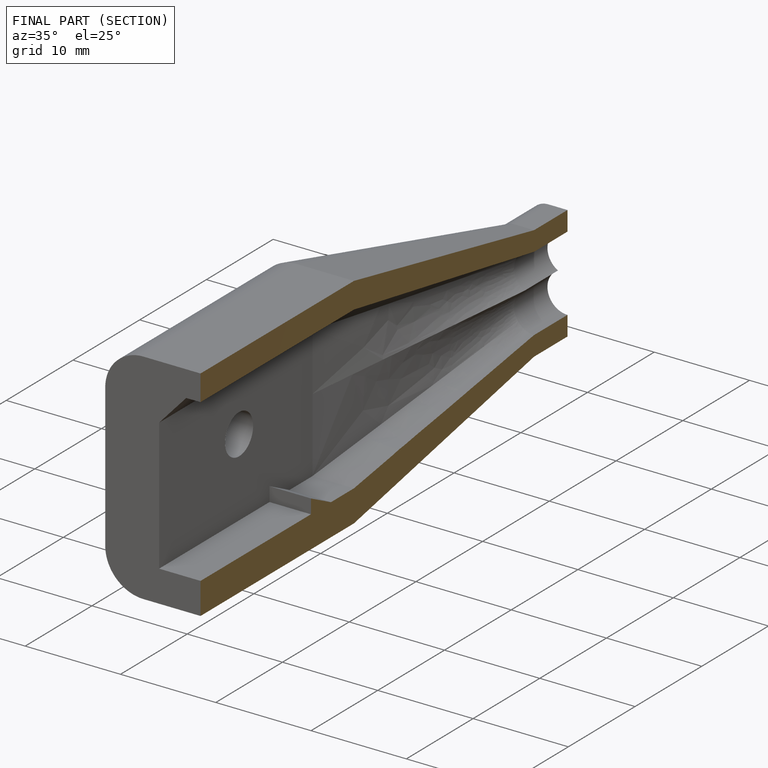
[diagram: finished part — half-section view (interior)]
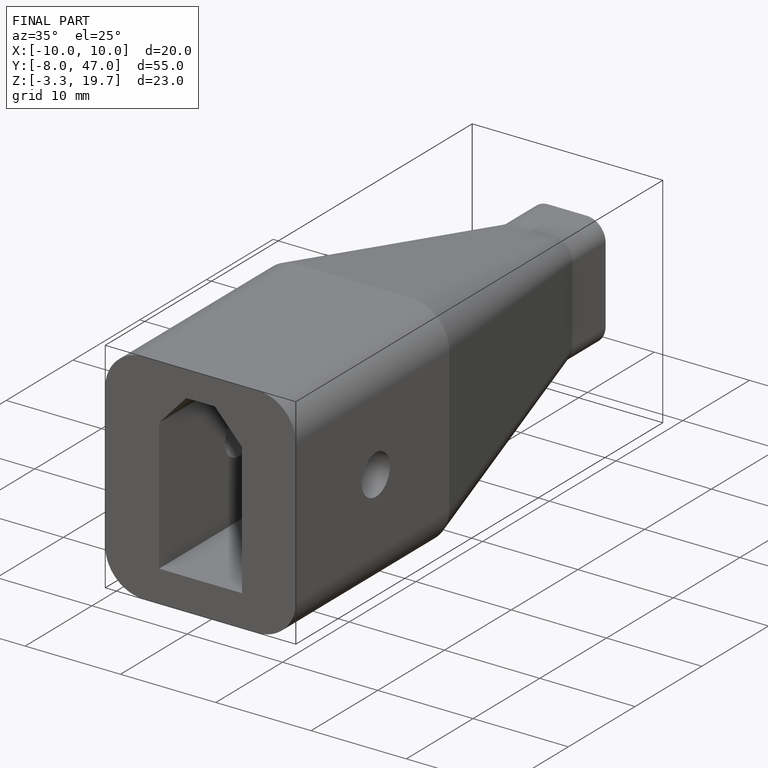
[diagram: finished part — iso view with bounding-box wireframe]
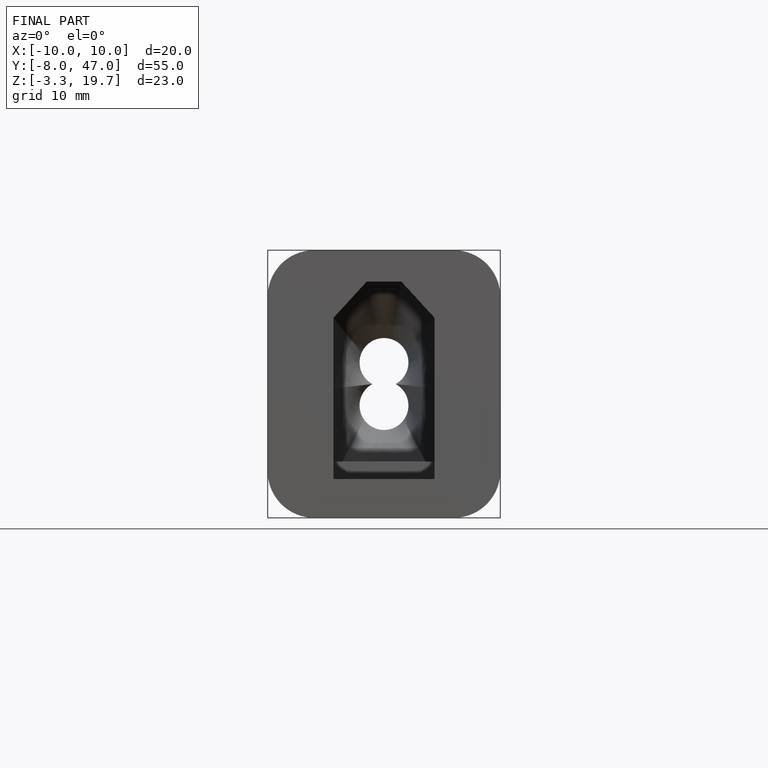
[diagram: finished part — front view with bounding-box wireframe]
